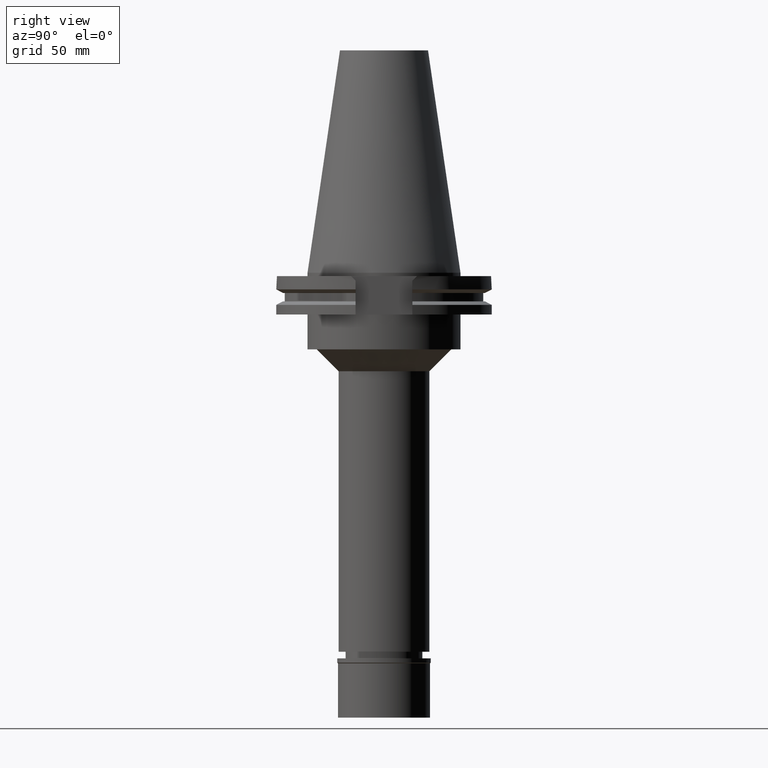
[diagram: clean part render]
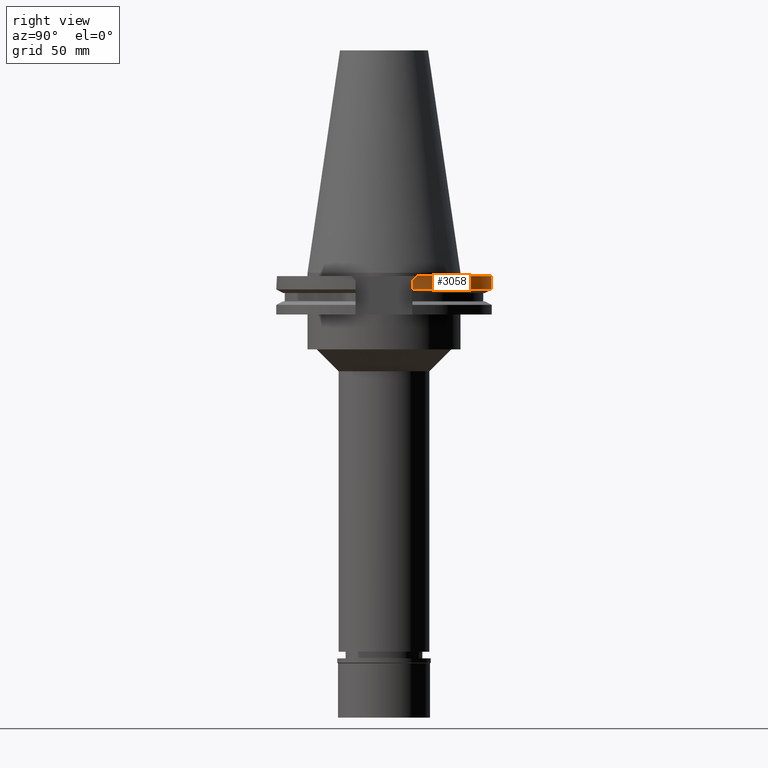
[diagram: same view with one face highlighted and labeled with its STEP entity id]
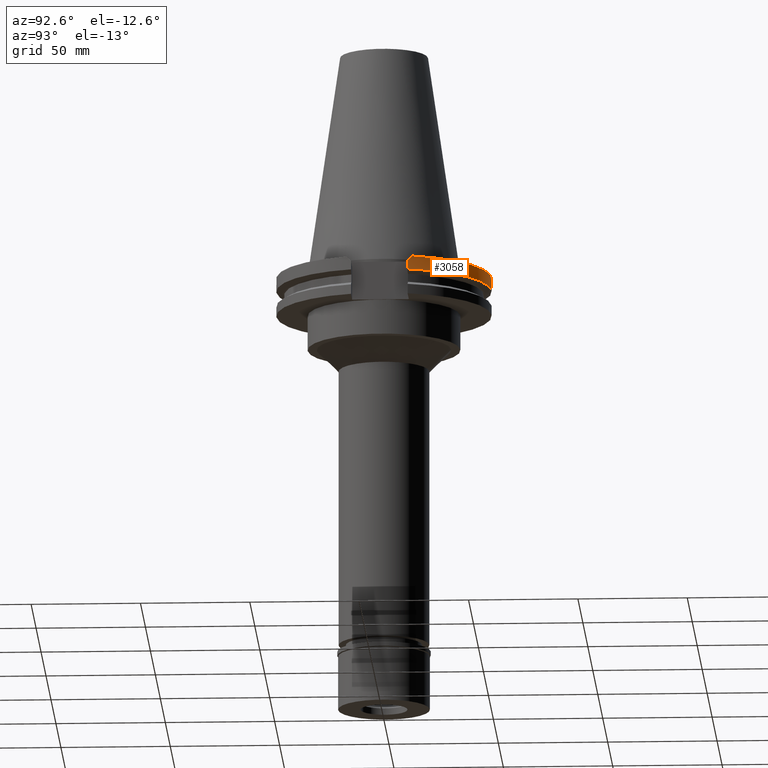
[diagram: same view with one face highlighted and labeled with its STEP entity id]
A machine part, right view. The second image highlights one B-rep face of the part: STEP entity #3058.
A second angle (auxiliary view) of the same face is appended — the face is thin or edge-on in the first view.
In plain terms, the highlighted cylindrical surface (partial cylindrical patch) has radius 49.2125 mm, axis along (0, 0, -1).
Its self-contained STEP definition (entity closure, byte-faithful):
#13 = EDGE_CURVE ( 'NONE', #1009, #2398, #2264, .T. ) ;
#83 = CARTESIAN_POINT ( 'NONE',  ( 46.82089417396999664, 15.15499999999999936, -1.500000000000000000 ) ) ;
#85 = CIRCLE ( 'NONE', #2238, 49.21250000000001279 ) ;
#125 = EDGE_CURVE ( 'NONE', #1009, #2237, #85, .T. ) ;
#200 = LINE ( 'NONE', #2213, #2738 ) ;
#282 = CARTESIAN_POINT ( 'NONE',  ( -47.47671146204000081, 12.95500000000000007, -7.601333230924999462 ) ) ;
#485 = EDGE_CURVE ( 'NONE', #3200, #2844, #564, .T. ) ;
#509 = CARTESIAN_POINT ( 'NONE',  ( 47.47671146204000081, 12.95500000000000007, -7.601333230924999462 ) ) ;
#523 = CARTESIAN_POINT ( 'NONE',  ( -46.82089417396999664, 15.15499999999999936, -1.500000000000000000 ) ) ;
#531 = CARTESIAN_POINT ( 'NONE',  ( 47.27588310256999904, 13.69098379592999848, -2.964016204073000260 ) ) ;
#564 = CIRCLE ( 'NONE', #1208, 49.21249999999999858 ) ;
#608 = DIRECTION ( 'NONE',  ( 0.0000000000000000000, 0.0000000000000000000, 1.000000000000000000 ) ) ;
#661 = CARTESIAN_POINT ( 'NONE',  ( 0.0000000000000000000, 2.648788561875999721E-14, 116.2900000000000063 ) ) ;
#678 = DIRECTION ( 'NONE',  ( -2.622645846769000281E-13, 3.460435492263999937E-14, -1.000000000000000000 ) ) ;
#788 = DIRECTION ( 'NONE',  ( 0.0000000000000000000, 1.000000000000000000, 0.0000000000000000000 ) ) ;
#909 = CARTESIAN_POINT ( 'NONE',  ( -47.47671146204000081, 12.95500000000000007, -3.700000000000000178 ) ) ;
#932 = CYLINDRICAL_SURFACE ( 'NONE', #1331, 49.21249999999999858 ) ;
#1009 = VERTEX_POINT ( 'NONE', #3072 ) ;
#1034 = CARTESIAN_POINT ( 'NONE',  ( 46.82089417396999664, 15.15499999999999936, -1.500000000000000000 ) ) ;
#1040 = CARTESIAN_POINT ( 'NONE',  ( -47.47671146204000081, 12.95500000000000007, -3.700000000000000178 ) ) ;
#1041 = ORIENTED_EDGE ( 'NONE', *, *, #1855, .F. ) ;
#1100 = EDGE_CURVE ( 'NONE', #2398, #2844, #1336, .T. ) ;
#1208 = AXIS2_PLACEMENT_3D ( 'NONE', #1506, #3127, #788 ) ;
#1248 = EDGE_LOOP ( 'NONE', ( #1041, #2232, #2193, #2105, #2691, #2725 ) ) ;
#1281 = CARTESIAN_POINT ( 'NONE',  ( 47.05739607796999735, 14.42433483211999956, -2.230665167879999800 ) ) ;
#1319 = VECTOR ( 'NONE', #1512, 1000.000000000000000 ) ;
#1331 = AXIS2_PLACEMENT_3D ( 'NONE', #661, #2715, #1429 ) ;
#1336 = B_SPLINE_CURVE_WITH_KNOTS ( 'NONE', 3,
 ( #2837, #531, #1281, #1034 ),
 .UNSPECIFIED., .F., .F.,
 ( 4, 4 ),
 ( 0.0000000000000000000, 1.000000000000000000 ),
 .UNSPECIFIED. ) ;
#1356 = CARTESIAN_POINT ( 'NONE',  ( 0.0000000000000000000, 1.121722380078999823E-14, -7.601333230925999551 ) ) ;
#1429 = DIRECTION ( 'NONE',  ( 0.0000000000000000000, -1.000000000000000000, 0.0000000000000000000 ) ) ;
#1506 = CARTESIAN_POINT ( 'NONE',  ( 0.0000000000000000000, 2.648788561875999721E-14, -1.500000000000000000 ) ) ;
#1512 = DIRECTION ( 'NONE',  ( -2.622645846769000281E-13, -3.642563676068000340E-14, 1.000000000000000000 ) ) ;
#1855 = EDGE_CURVE ( 'NONE', #3200, #2054, #2574, .T. ) ;
#2054 = VERTEX_POINT ( 'NONE', #1040 ) ;
#2087 = CARTESIAN_POINT ( 'NONE',  ( -46.82089417396999664, 15.15499999999999936, -1.500000000000000000 ) ) ;
#2105 = ORIENTED_EDGE ( 'NONE', *, *, #13, .F. ) ;
#2176 = CARTESIAN_POINT ( 'NONE',  ( -47.05739607796999735, 14.42433483211999956, -2.230665167879999800 ) ) ;
#2193 = ORIENTED_EDGE ( 'NONE', *, *, #1100, .F. ) ;
#2213 = CARTESIAN_POINT ( 'NONE',  ( -47.47671146204000081, 12.95500000000000007, -3.700000000000000178 ) ) ;
#2232 = ORIENTED_EDGE ( 'NONE', *, *, #485, .T. ) ;
#2237 = VERTEX_POINT ( 'NONE', #282 ) ;
#2238 = AXIS2_PLACEMENT_3D ( 'NONE', #1356, #608, #2617 ) ;
#2264 = LINE ( 'NONE', #509, #1319 ) ;
#2398 = VERTEX_POINT ( 'NONE', #2701 ) ;
#2574 = B_SPLINE_CURVE_WITH_KNOTS ( 'NONE', 3,
 ( #2087, #2176, #3191, #909 ),
 .UNSPECIFIED., .F., .F.,
 ( 4, 4 ),
 ( 0.0000000000000000000, 1.000000000000000000 ),
 .UNSPECIFIED. ) ;
#2617 = DIRECTION ( 'NONE',  ( 0.9647287063660957562, 0.2632461264922989486, 0.0000000000000000000 ) ) ;
#2691 = ORIENTED_EDGE ( 'NONE', *, *, #125, .T. ) ;
#2701 = CARTESIAN_POINT ( 'NONE',  ( 47.47671146204000081, 12.95500000000000007, -3.700000000000000178 ) ) ;
#2715 = DIRECTION ( 'NONE',  ( 0.0000000000000000000, 0.0000000000000000000, -1.000000000000000000 ) ) ;
#2725 = ORIENTED_EDGE ( 'NONE', *, *, #3031, .F. ) ;
#2738 = VECTOR ( 'NONE', #678, 1000.000000000000000 ) ;
#2837 = CARTESIAN_POINT ( 'NONE',  ( 47.47671146204000081, 12.95500000000000007, -3.700000000000000178 ) ) ;
#2844 = VERTEX_POINT ( 'NONE', #83 ) ;
#3013 = FACE_OUTER_BOUND ( 'NONE', #1248, .T. ) ;
#3031 = EDGE_CURVE ( 'NONE', #2054, #2237, #200, .T. ) ;
#3058 = ADVANCED_FACE ( 'NONE', ( #3013 ), #932, .T. ) ;
#3072 = CARTESIAN_POINT ( 'NONE',  ( 47.47671146204000081, 12.95500000000000007, -7.601333230924999462 ) ) ;
#3127 = DIRECTION ( 'NONE',  ( 0.0000000000000000000, 0.0000000000000000000, -1.000000000000000000 ) ) ;
#3191 = CARTESIAN_POINT ( 'NONE',  ( -47.27588310256999904, 13.69098379592999848, -2.964016204073000260 ) ) ;
#3200 = VERTEX_POINT ( 'NONE', #523 ) ;